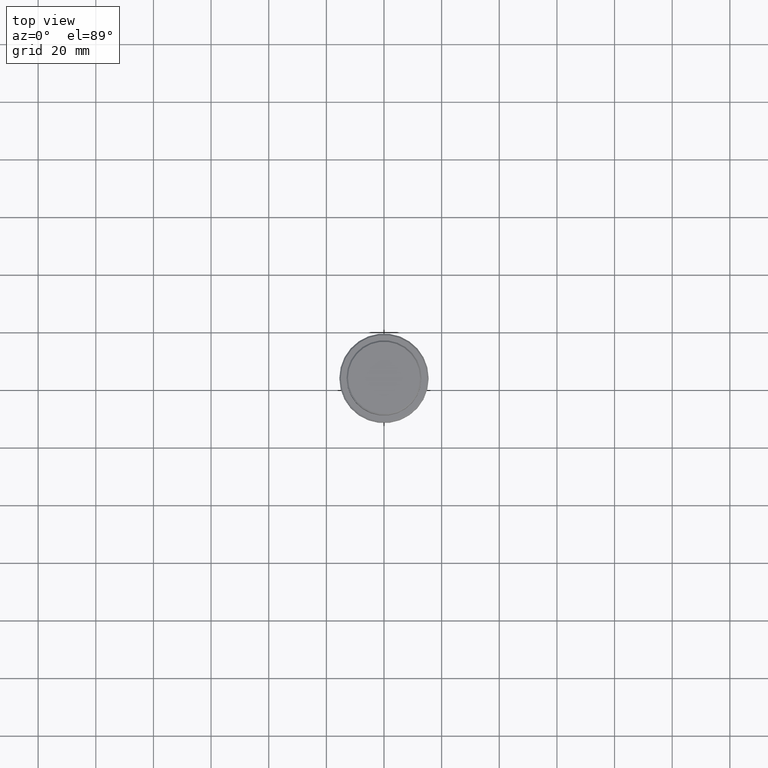
[diagram: clean part render]
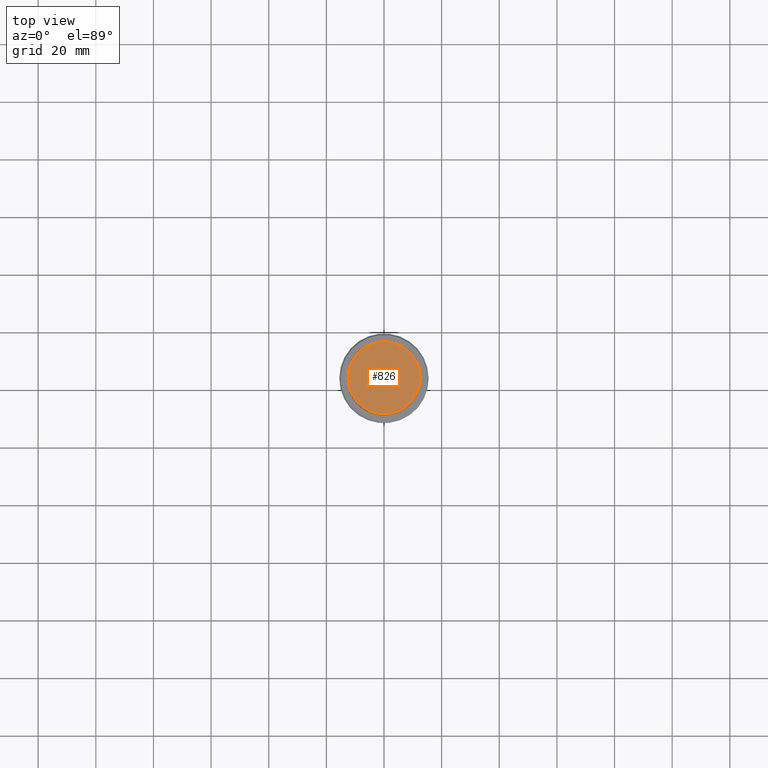
[diagram: same view with one face highlighted and labeled with its STEP entity id]
A machine part, top view. The second image highlights one B-rep face of the part: STEP entity #826.
In plain terms, the highlighted planar face has unit normal (0, -0, 1).
Its self-contained STEP definition (entity closure, byte-faithful):
#124 = CIRCLE ( 'NONE', #688, 12.49999999999998579 ) ;
#215 = AXIS2_PLACEMENT_3D ( 'NONE', #363, #689, #1029 ) ;
#255 = EDGE_CURVE ( 'NONE', #1362, #318, #124, .T. ) ;
#298 = EDGE_CURVE ( 'NONE', #318, #1362, #1084, .T. ) ;
#318 = VERTEX_POINT ( 'NONE', #464 ) ;
#363 = CARTESIAN_POINT ( 'NONE',  ( 0.000000000000000000, 0.000000000000000000, 0.000000000000000000 ) ) ;
#460 = AXIS2_PLACEMENT_3D ( 'NONE', #1341, #812, #570 ) ;
#464 = CARTESIAN_POINT ( 'NONE',  ( -12.49999999999998579, 0.000000000000000000, 0.000000000000000000 ) ) ;
#479 = DIRECTION ( 'NONE',  ( -0.000000000000000000, -0.000000000000000000, 1.000000000000000000 ) ) ;
#570 = DIRECTION ( 'NONE',  ( 1.000000000000000000, 0.000000000000000000, 0.000000000000000000 ) ) ;
#642 = ORIENTED_EDGE ( 'NONE', *, *, #298, .T. ) ;
#688 = AXIS2_PLACEMENT_3D ( 'NONE', #1374, #479, #1145 ) ;
#689 = DIRECTION ( 'NONE',  ( 0.000000000000000000, -0.000000000000000000, 1.000000000000000000 ) ) ;
#695 = FACE_OUTER_BOUND ( 'NONE', #1376, .T. ) ;
#811 = PLANE ( 'NONE',  #215 ) ;
#812 = DIRECTION ( 'NONE',  ( -0.000000000000000000, -0.000000000000000000, 1.000000000000000000 ) ) ;
#826 = ADVANCED_FACE ( 'NONE', ( #695 ), #811, .T. ) ;
#1029 = DIRECTION ( 'NONE',  ( 1.000000000000000000, 0.000000000000000000, 0.000000000000000000 ) ) ;
#1084 = CIRCLE ( 'NONE', #460, 12.49999999999998579 ) ;
#1145 = DIRECTION ( 'NONE',  ( 1.000000000000000000, 0.000000000000000000, 0.000000000000000000 ) ) ;
#1146 = ORIENTED_EDGE ( 'NONE', *, *, #255, .T. ) ;
#1180 = CARTESIAN_POINT ( 'NONE',  ( 12.49999999999998579, 1.561424668912874125E-15, 0.000000000000000000 ) ) ;
#1341 = CARTESIAN_POINT ( 'NONE',  ( 0.000000000000000000, 0.000000000000000000, 0.000000000000000000 ) ) ;
#1362 = VERTEX_POINT ( 'NONE', #1180 ) ;
#1374 = CARTESIAN_POINT ( 'NONE',  ( 0.000000000000000000, 0.000000000000000000, 0.000000000000000000 ) ) ;
#1376 = EDGE_LOOP ( 'NONE', ( #642, #1146 ) ) ;